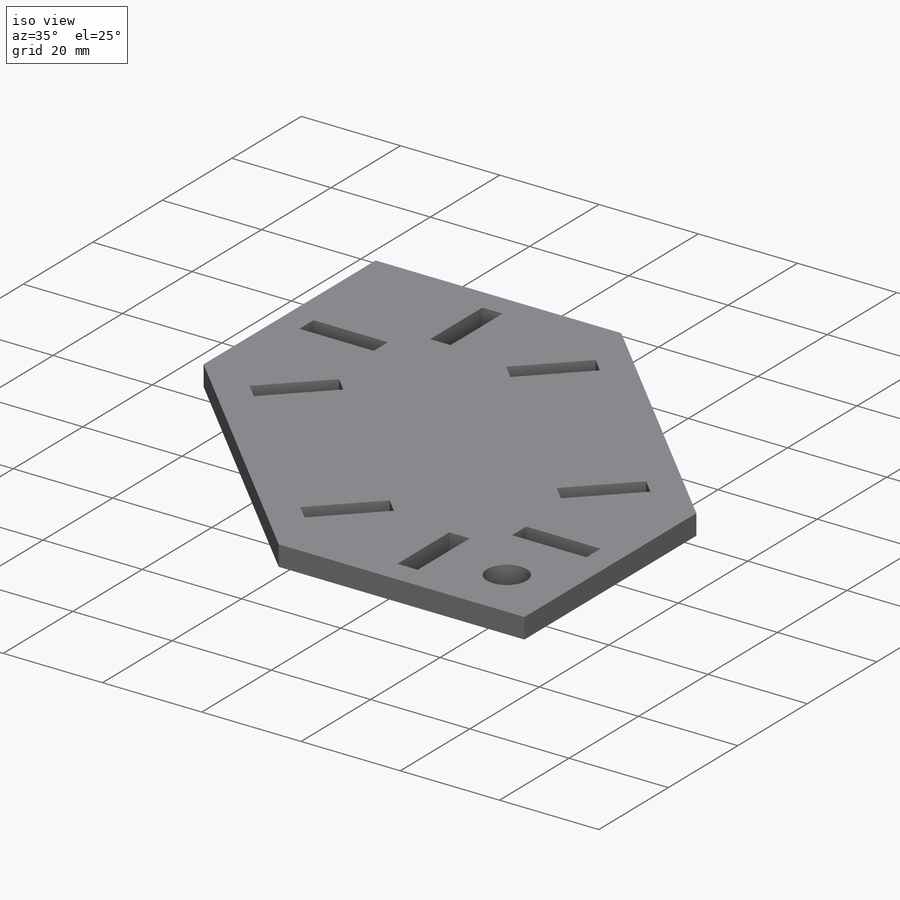
[diagram: iso view]
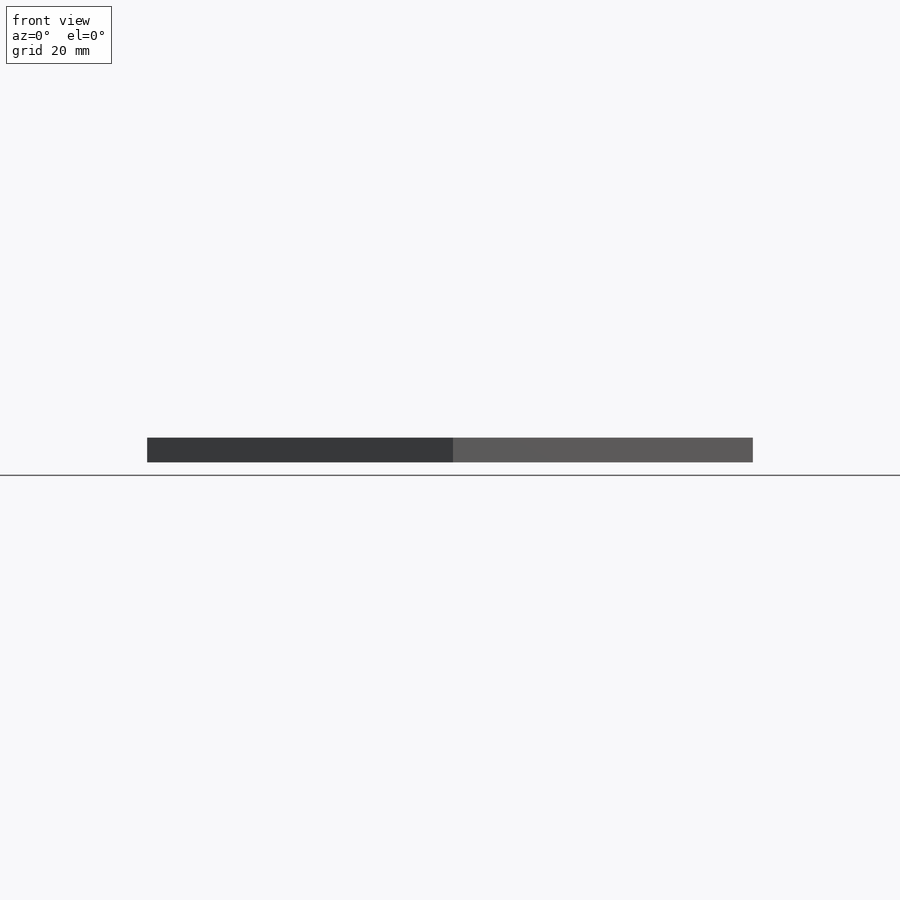
[diagram: front view]
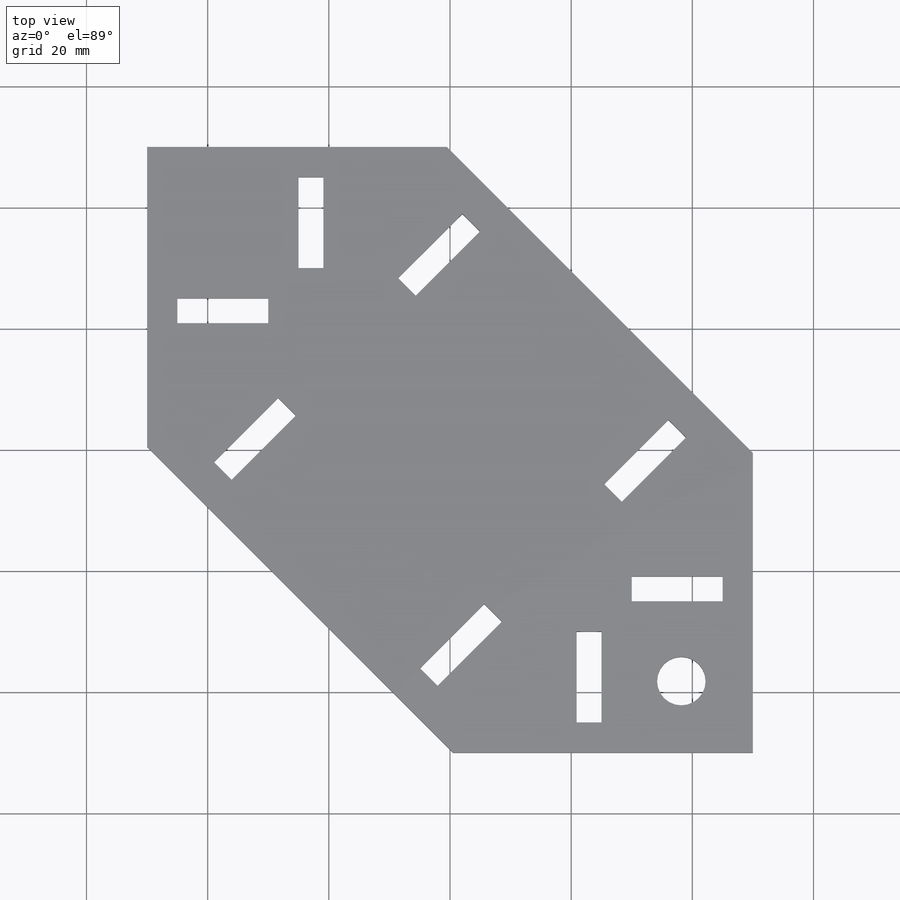
[diagram: top view]
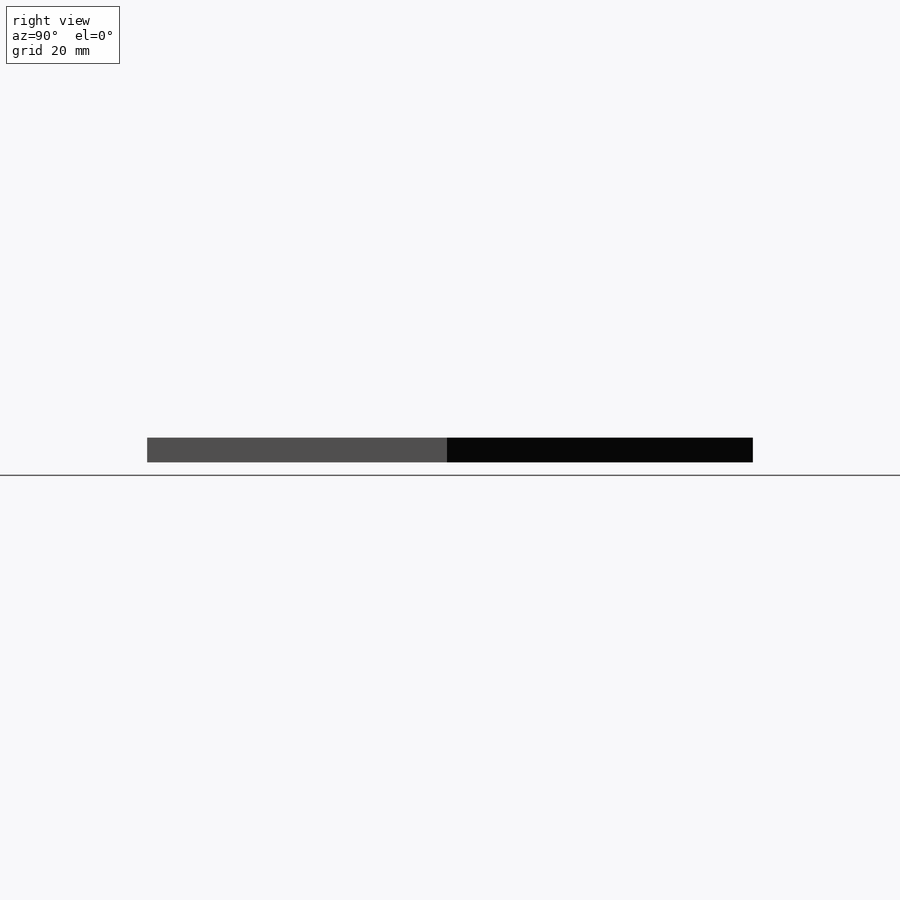
[diagram: right view]
SOLIDWORKS PART (.sldprt)
format: sldprt  version: not decoded by parser v0  size: 223,232 bytes
history: native  units: mm
features: sketch x4, cut_extrude x3, material x1, extrude x1, plane x1 (+11 scaffold rows collapsed)
feature tree (21):
  scaffold x11  (default folders/planes/origin — collapsed)
  material  "Corrugated Paper"
  sketch  "Sketch1"  dims[c1.D10=15.0mm c1.D3=8.0mm c1.D1=100.0mm c1.D2=100.0mm c2.D3=30.0mm c2.D4=15.0mm c2.D5=4.1mm c2.D6=50.0mm c2.D7=4.1mm c2.D8=15.0mm c2.D9=8.0mm c3.D7=60.0mm]
  extrude  "Boss-Extrude1"  Depth=4.1mm
  plane  "Plane1"
  sketch  "Sketch2"
  cut_extrude  "Cut-Extrude1"  Depth=35mm
  sketch  "Sketch3"
  cut_extrude  "Cut-Extrude2"  Depth=35mm
  sketch  "Sketch4"  dims[D1=14.0mm D2=22.0mm]
  cut_extrude  "Cut-Extrude3"  [1 undecoded]
decode coverage: 5 of 8 modeling features carry decoded parameters
note: 1 parameter value undecoded
note: suppression state not decoded; provenance and decode notes live in map.json
